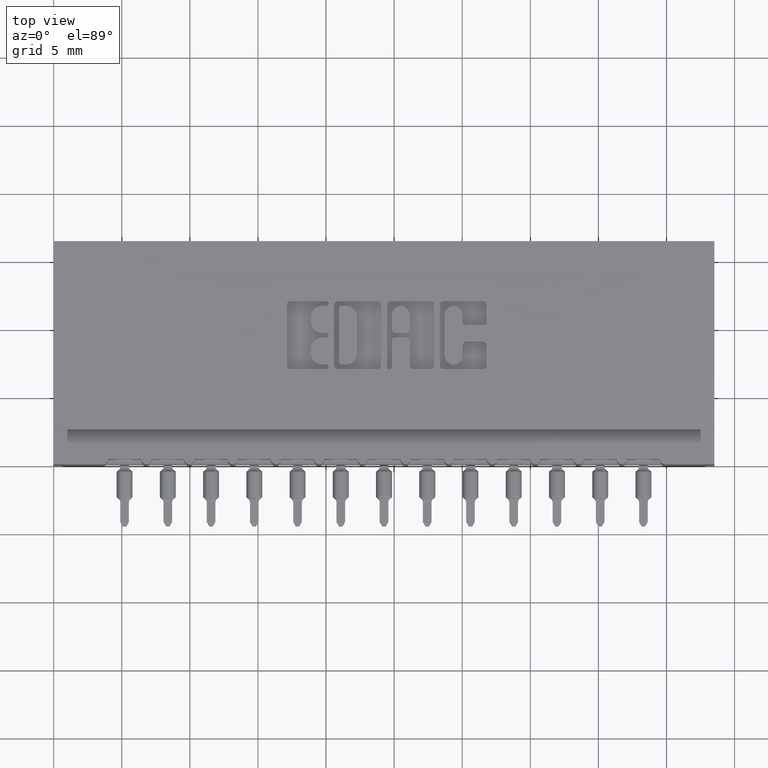
[diagram: clean part render]
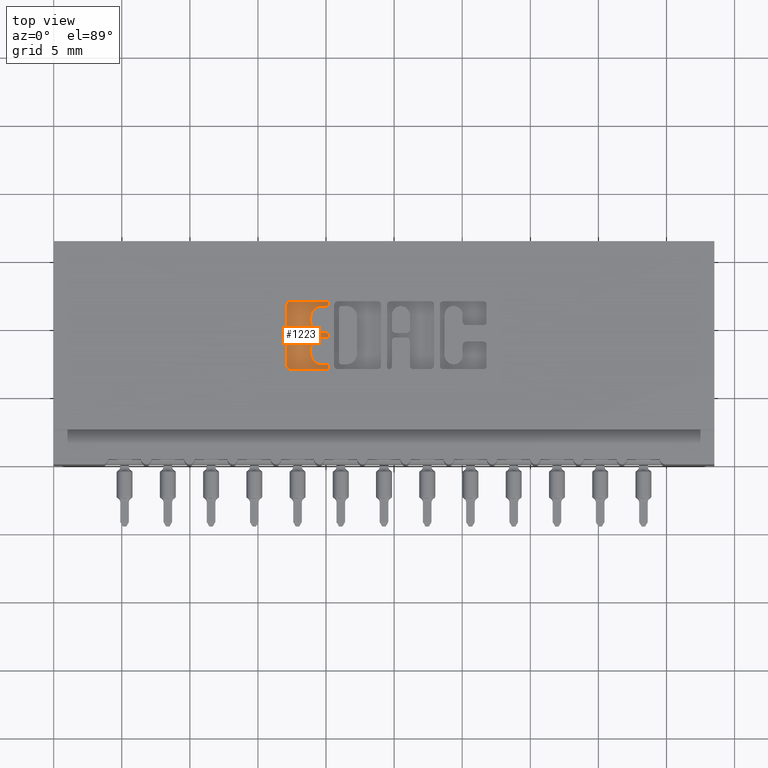
[diagram: same view with one face highlighted and labeled with its STEP entity id]
A machine part, top view. The second image highlights one B-rep face of the part: STEP entity #1223.
In plain terms, the highlighted planar face has unit normal (0, 0, 1).
Its self-contained STEP definition (entity closure, byte-faithful):
#255 = LINE ( 'NONE', #10960, #4354 ) ;
#514 = DIRECTION ( 'NONE',  ( -0.0000000000000000000, 0.0000000000000000000, 1.000000000000000000 ) ) ;
#516 = VECTOR ( 'NONE', #21274, 39.37007874015748143 ) ;
#586 = AXIS2_PLACEMENT_3D ( 'NONE', #17095, #610, #5206 ) ;
#610 = DIRECTION ( 'NONE',  ( -0.0000000000000000000, 0.0000000000000000000, 1.000000000000000000 ) ) ;
#641 = CARTESIAN_POINT ( 'NONE',  ( 0.7746370600050840327, 0.3793709691426839226, -0.01000000000000000021 ) ) ;
#680 = LINE ( 'NONE', #1150, #3152 ) ;
#684 = CARTESIAN_POINT ( 'NONE',  ( 0.7950045756779734463, 0.3725000000000204259, -0.01000000000000000021 ) ) ;
#718 = CIRCLE ( 'NONE', #20325, 0.006870969142648433205 ) ;
#825 = AXIS2_PLACEMENT_3D ( 'NONE', #13758, #514, #22759 ) ;
#960 = CARTESIAN_POINT ( 'NONE',  ( 0.7746370600050840327, 0.3342188862052006271, -0.01000000000000000021 ) ) ;
#1150 = CARTESIAN_POINT ( 'NONE',  ( -1.976217237646392959E-15, 0.2743432979619800927, -0.01000000000000000021 ) ) ;
#1168 = CARTESIAN_POINT ( 'NONE',  ( 0.6740264404161153688, 0.0000000000000000000, -0.01000000000000000021 ) ) ;
#1223 = ADVANCED_FACE ( 'NONE', ( #10359 ), #10124, .T. ) ;
#1246 = AXIS2_PLACEMENT_3D ( 'NONE', #15742, #12583, #4544 ) ;
#1661 = LINE ( 'NONE', #10941, #3144 ) ;
#1692 = CARTESIAN_POINT ( 'NONE',  ( 0.7881336064154143006, 0.2880852362473102501, -0.01000000000000000021 ) ) ;
#1708 = DIRECTION ( 'NONE',  ( 1.000000000000000000, 0.0000000000000000000, 0.0000000000000000000 ) ) ;
#2036 = VERTEX_POINT ( 'NONE', #14473 ) ;
#2300 = VERTEX_POINT ( 'NONE', #19021 ) ;
#2345 = CARTESIAN_POINT ( 'NONE',  ( 0.7950045756779977602, 0.2812142671046480302, -0.01000000000000000021 ) ) ;
#2385 = LINE ( 'NONE', #9753, #23586 ) ;
#2427 = ORIENTED_EDGE ( 'NONE', *, *, #5820, .T. ) ;
#2491 = CIRCLE ( 'NONE', #2866, 0.03141014465215623969 ) ;
#2558 = VERTEX_POINT ( 'NONE', #2345 ) ;
#2614 = DIRECTION ( 'NONE',  ( -0.0000000000000000000, 0.0000000000000000000, 1.000000000000000000 ) ) ;
#2712 = EDGE_CURVE ( 'NONE', #14421, #13162, #680, .T. ) ;
#2732 = VERTEX_POINT ( 'NONE', #6435 ) ;
#2737 = VERTEX_POINT ( 'NONE', #13914 ) ;
#2866 = AXIS2_PLACEMENT_3D ( 'NONE', #960, #4213, #16980 ) ;
#3144 = VECTOR ( 'NONE', #14563, 39.37007874015748143 ) ;
#3152 = VECTOR ( 'NONE', #8493, 39.37007874015748143 ) ;
#3293 = VERTEX_POINT ( 'NONE', #1692 ) ;
#3659 = VERTEX_POINT ( 'NONE', #14208 ) ;
#3762 = AXIS2_PLACEMENT_3D ( 'NONE', #12492, #23309, #10682 ) ;
#4213 = DIRECTION ( 'NONE',  ( -0.0000000000000000000, 0.0000000000000000000, 1.000000000000000000 ) ) ;
#4291 = VERTEX_POINT ( 'NONE', #684 ) ;
#4354 = VECTOR ( 'NONE', #7241, 39.37007874015748143 ) ;
#4372 = ORIENTED_EDGE ( 'NONE', *, *, #22560, .T. ) ;
#4394 = EDGE_CURVE ( 'NONE', #14961, #19279, #718, .T. ) ;
#4534 = ORIENTED_EDGE ( 'NONE', *, *, #22411, .T. ) ;
#4544 = DIRECTION ( 'NONE',  ( 1.000000000000000000, 0.0000000000000000000, 0.0000000000000000000 ) ) ;
#4754 = ORIENTED_EDGE ( 'NONE', *, *, #22782, .T. ) ;
#5018 = CARTESIAN_POINT ( 'NONE',  ( 0.7746370600050840327, 0.3656290308573568737, -0.01000000000000000021 ) ) ;
#5023 = CARTESIAN_POINT ( 'NONE',  ( 0.7881336065353099496, 0.3793709691426839226, -0.01000000000000000021 ) ) ;
#5151 = AXIS2_PLACEMENT_3D ( 'NONE', #16049, #17839, #1708 ) ;
#5162 = AXIS2_PLACEMENT_3D ( 'NONE', #5753, #12870, #20680 ) ;
#5165 = EDGE_LOOP ( 'NONE', ( #15536, #2427, #4534, #10119, #23619, #4754, #9901, #20901, #19324, #17981, #19887, #4372, #16380, #13082, #11380, #11672, #10906, #16100, #5580, #15898, #9233 ) ) ;
#5206 = DIRECTION ( 'NONE',  ( 1.000000000000000000, 0.0000000000000000000, 0.0000000000000000000 ) ) ;
#5580 = ORIENTED_EDGE ( 'NONE', *, *, #21856, .T. ) ;
#5585 = EDGE_CURVE ( 'NONE', #20651, #11803, #13143, .T. ) ;
#5753 = CARTESIAN_POINT ( 'NONE',  ( 0.6838421106199380484, 0.4608410318342101575, -0.01000000000000000021 ) ) ;
#5813 = LINE ( 'NONE', #11354, #7917 ) ;
#5820 = EDGE_CURVE ( 'NONE', #20651, #9327, #255, .T. ) ;
#6341 = CARTESIAN_POINT ( 'NONE',  ( 0.7881336064154143006, 0.2743432979619857548, -0.01000000000000000021 ) ) ;
#6435 = CARTESIAN_POINT ( 'NONE',  ( 0.7746370600051095678, 0.2880852362473086403, -0.01000000000000000021 ) ) ;
#6793 = AXIS2_PLACEMENT_3D ( 'NONE', #13760, #8570, #23223 ) ;
#7035 = CARTESIAN_POINT ( 'NONE',  ( 0.7881336064153887655, 0.3656290308573568737, -0.01000000000000000021 ) ) ;
#7052 = EDGE_CURVE ( 'NONE', #16173, #4291, #22150, .T. ) ;
#7098 = CIRCLE ( 'NONE', #5151, 0.006870969142663458512 ) ;
#7159 = AXIS2_PLACEMENT_3D ( 'NONE', #7356, #18662, #9413 ) ;
#7241 = DIRECTION ( 'NONE',  ( 1.000000000000000000, 0.0000000000000000000, 0.0000000000000000000 ) ) ;
#7256 = CIRCLE ( 'NONE', #11479, 0.009815670203805798924 ) ;
#7356 = CARTESIAN_POINT ( 'NONE',  ( 0.7881336065353099496, 0.3725000000000204259, -0.01000000000000000021 ) ) ;
#7883 = VECTOR ( 'NONE', #21046, 39.37007874015748143 ) ;
#7902 = DIRECTION ( 'NONE',  ( -0.0000000000000000000, 0.0000000000000000000, 1.000000000000000000 ) ) ;
#7908 = CARTESIAN_POINT ( 'NONE',  ( 0.7881336065353513609, 0.4569147637527357642, -0.01000000000000000021 ) ) ;
#7917 = VECTOR ( 'NONE', #9324, 39.37007874015748143 ) ;
#8058 = LINE ( 'NONE', #22732, #7883 ) ;
#8154 = CARTESIAN_POINT ( 'NONE',  ( 0.6838421106199186195, 0.2743432979619850332, -0.01000000000000000021 ) ) ;
#8493 = DIRECTION ( 'NONE',  ( 1.000000000000000000, 7.203446383881654569E-15, 0.0000000000000000000 ) ) ;
#8570 = DIRECTION ( 'NONE',  ( -0.0000000000000000000, 0.0000000000000000000, 1.000000000000000000 ) ) ;
#9011 = EDGE_CURVE ( 'NONE', #2737, #12656, #12203, .T. ) ;
#9218 = EDGE_CURVE ( 'NONE', #13162, #2558, #9927, .T. ) ;
#9233 = ORIENTED_EDGE ( 'NONE', *, *, #21415, .T. ) ;
#9324 = DIRECTION ( 'NONE',  ( 1.000000000000000000, 0.0000000000000000000, 0.0000000000000000000 ) ) ;
#9327 = VERTEX_POINT ( 'NONE', #7908 ) ;
#9413 = DIRECTION ( 'NONE',  ( 1.000000000000000000, 0.0000000000000000000, 0.0000000000000000000 ) ) ;
#9620 = VERTEX_POINT ( 'NONE', #12458 ) ;
#9753 = CARTESIAN_POINT ( 'NONE',  ( 0.7432269153529094119, 0.0000000000000000000, -0.01000000000000000021 ) ) ;
#9901 = ORIENTED_EDGE ( 'NONE', *, *, #21866, .T. ) ;
#9927 = CIRCLE ( 'NONE', #3762, 0.006870969142662229460 ) ;
#10119 = ORIENTED_EDGE ( 'NONE', *, *, #4394, .T. ) ;
#10124 = PLANE ( 'NONE',  #6793 ) ;
#10359 = FACE_OUTER_BOUND ( 'NONE', #5165, .T. ) ;
#10623 = CARTESIAN_POINT ( 'NONE',  ( 0.7746370600051254440, 0.4569147637527357642, -0.01000000000000000021 ) ) ;
#10659 = LINE ( 'NONE', #12466, #15173 ) ;
#10682 = DIRECTION ( 'NONE',  ( 1.000000000000000000, 0.0000000000000000000, 0.0000000000000000000 ) ) ;
#10778 = DIRECTION ( 'NONE',  ( -1.000000000000000000, 0.0000000000000000000, 0.0000000000000000000 ) ) ;
#10906 = ORIENTED_EDGE ( 'NONE', *, *, #7052, .T. ) ;
#10941 = CARTESIAN_POINT ( 'NONE',  ( 0.7432269153529277306, 0.0000000000000000000, -0.01000000000000000021 ) ) ;
#10960 = CARTESIAN_POINT ( 'NONE',  ( 0.0000000000000000000, 0.4569147637527357642, -0.01000000000000000021 ) ) ;
#11265 = EDGE_CURVE ( 'NONE', #4291, #22696, #7098, .T. ) ;
#11354 = CARTESIAN_POINT ( 'NONE',  ( 0.0000000000000000000, 0.3656290308573568737, -0.01000000000000000021 ) ) ;
#11380 = ORIENTED_EDGE ( 'NONE', *, *, #11846, .F. ) ;
#11479 = AXIS2_PLACEMENT_3D ( 'NONE', #22606, #12877, #20216 ) ;
#11629 = CIRCLE ( 'NONE', #1246, 0.03141014465218178175 ) ;
#11672 = ORIENTED_EDGE ( 'NONE', *, *, #23551, .T. ) ;
#11803 = VERTEX_POINT ( 'NONE', #13138 ) ;
#11846 = EDGE_CURVE ( 'NONE', #21517, #9620, #2491, .T. ) ;
#11895 = LINE ( 'NONE', #21035, #516 ) ;
#12116 = LINE ( 'NONE', #1168, #18225 ) ;
#12203 = CIRCLE ( 'NONE', #23349, 0.03141014465217454449 ) ;
#12458 = CARTESIAN_POINT ( 'NONE',  ( 0.7432269153529277306, 0.3342188862052006271, -0.01000000000000000021 ) ) ;
#12466 = CARTESIAN_POINT ( 'NONE',  ( 0.0000000000000000000, 0.3793709691426839226, -0.01000000000000000021 ) ) ;
#12492 = CARTESIAN_POINT ( 'NONE',  ( 0.7881336065353354847, 0.2812142671046480302, -0.01000000000000000021 ) ) ;
#12583 = DIRECTION ( 'NONE',  ( -0.0000000000000000000, 0.0000000000000000000, 1.000000000000000000 ) ) ;
#12656 = VERTEX_POINT ( 'NONE', #641 ) ;
#12870 = DIRECTION ( 'NONE',  ( -0.0000000000000000000, 0.0000000000000000000, 1.000000000000000000 ) ) ;
#12877 = DIRECTION ( 'NONE',  ( -0.0000000000000000000, 0.0000000000000000000, 1.000000000000000000 ) ) ;
#13082 = ORIENTED_EDGE ( 'NONE', *, *, #17728, .T. ) ;
#13138 = CARTESIAN_POINT ( 'NONE',  ( 0.7432269153529094119, 0.4255046191005198430, -0.01000000000000000021 ) ) ;
#13143 = CIRCLE ( 'NONE', #825, 0.03141014465221592805 ) ;
#13162 = VERTEX_POINT ( 'NONE', #6341 ) ;
#13758 = CARTESIAN_POINT ( 'NONE',  ( 0.7746370600051254440, 0.4255046191005198430, -0.01000000000000000021 ) ) ;
#13760 = CARTESIAN_POINT ( 'NONE',  ( 0.0000000000000000000, 0.0000000000000000000, -0.01000000000000000021 ) ) ;
#13914 = CARTESIAN_POINT ( 'NONE',  ( 0.7432269153529094119, 0.4107811137948584324, -0.01000000000000000021 ) ) ;
#14024 = CARTESIAN_POINT ( 'NONE',  ( 0.7950045756779996475, 0.4637857328953863267, -0.01000000000000000021 ) ) ;
#14058 = CARTESIAN_POINT ( 'NONE',  ( 0.7881336065353511389, 0.4706567020380327815, -0.01000000000000000021 ) ) ;
#14208 = CARTESIAN_POINT ( 'NONE',  ( 0.6740264404161153688, 0.2841589681657900046, -0.01000000000000000021 ) ) ;
#14266 = EDGE_CURVE ( 'NONE', #3659, #14421, #7256, .T. ) ;
#14276 = DIRECTION ( 'NONE',  ( 0.0000000000000000000, -1.000000000000000000, 0.0000000000000000000 ) ) ;
#14421 = VERTEX_POINT ( 'NONE', #8154 ) ;
#14473 = CARTESIAN_POINT ( 'NONE',  ( 0.7432269153529277306, 0.3194953808994904221, -0.01000000000000000021 ) ) ;
#14563 = DIRECTION ( 'NONE',  ( 0.0000000000000000000, 1.000000000000000000, -0.0000000000000000000 ) ) ;
#14961 = VERTEX_POINT ( 'NONE', #14024 ) ;
#15173 = VECTOR ( 'NONE', #10778, 39.37007874015748143 ) ;
#15507 = CARTESIAN_POINT ( 'NONE',  ( 0.7746370600050840327, 0.4107811137948584324, -0.01000000000000000021 ) ) ;
#15536 = ORIENTED_EDGE ( 'NONE', *, *, #5585, .F. ) ;
#15556 = CIRCLE ( 'NONE', #5162, 0.009815670203822599721 ) ;
#15742 = CARTESIAN_POINT ( 'NONE',  ( 0.7746370600051095678, 0.3194953808994904221, -0.01000000000000000021 ) ) ;
#15898 = ORIENTED_EDGE ( 'NONE', *, *, #9011, .F. ) ;
#16049 = CARTESIAN_POINT ( 'NONE',  ( 0.7881336065353099496, 0.3725000000000204259, -0.01000000000000000021 ) ) ;
#16100 = ORIENTED_EDGE ( 'NONE', *, *, #11265, .T. ) ;
#16173 = VERTEX_POINT ( 'NONE', #7035 ) ;
#16380 = ORIENTED_EDGE ( 'NONE', *, *, #17978, .F. ) ;
#16980 = DIRECTION ( 'NONE',  ( 1.000000000000000000, 0.0000000000000000000, 0.0000000000000000000 ) ) ;
#17051 = CARTESIAN_POINT ( 'NONE',  ( 0.7881336065353511389, 0.4637857328953863267, -0.01000000000000000021 ) ) ;
#17095 = CARTESIAN_POINT ( 'NONE',  ( 0.7881336065353511389, 0.4637857328953863267, -0.01000000000000000021 ) ) ;
#17169 = DIRECTION ( 'NONE',  ( 1.000000000000000000, 0.0000000000000000000, 0.0000000000000000000 ) ) ;
#17551 = DIRECTION ( 'NONE',  ( 1.000000000000000000, 0.0000000000000000000, 0.0000000000000000000 ) ) ;
#17728 = EDGE_CURVE ( 'NONE', #2036, #9620, #1661, .T. ) ;
#17839 = DIRECTION ( 'NONE',  ( -0.0000000000000000000, 0.0000000000000000000, 1.000000000000000000 ) ) ;
#17851 = VERTEX_POINT ( 'NONE', #20792 ) ;
#17978 = EDGE_CURVE ( 'NONE', #2036, #2732, #11629, .T. ) ;
#17981 = ORIENTED_EDGE ( 'NONE', *, *, #9218, .T. ) ;
#18225 = VECTOR ( 'NONE', #14276, 39.37007874015748143 ) ;
#18662 = DIRECTION ( 'NONE',  ( -0.0000000000000000000, 0.0000000000000000000, 1.000000000000000000 ) ) ;
#19010 = CIRCLE ( 'NONE', #20186, 0.006870969142662229460 ) ;
#19021 = CARTESIAN_POINT ( 'NONE',  ( 0.6838421106199380484, 0.4706567020380327815, -0.01000000000000000021 ) ) ;
#19279 = VERTEX_POINT ( 'NONE', #14058 ) ;
#19324 = ORIENTED_EDGE ( 'NONE', *, *, #2712, .T. ) ;
#19839 = DIRECTION ( 'NONE',  ( -0.0000000000000000000, 0.0000000000000000000, 1.000000000000000000 ) ) ;
#19887 = ORIENTED_EDGE ( 'NONE', *, *, #22620, .T. ) ;
#20186 = AXIS2_PLACEMENT_3D ( 'NONE', #21637, #19839, #23436 ) ;
#20216 = DIRECTION ( 'NONE',  ( 1.000000000000000000, 0.0000000000000000000, 0.0000000000000000000 ) ) ;
#20325 = AXIS2_PLACEMENT_3D ( 'NONE', #17051, #7902, #17169 ) ;
#20348 = EDGE_CURVE ( 'NONE', #19279, #2300, #11895, .T. ) ;
#20651 = VERTEX_POINT ( 'NONE', #10623 ) ;
#20680 = DIRECTION ( 'NONE',  ( 1.000000000000000000, 0.0000000000000000000, 0.0000000000000000000 ) ) ;
#20792 = CARTESIAN_POINT ( 'NONE',  ( 0.6740264404161153688, 0.4608410318342101575, -0.01000000000000000021 ) ) ;
#20901 = ORIENTED_EDGE ( 'NONE', *, *, #14266, .T. ) ;
#21035 = CARTESIAN_POINT ( 'NONE',  ( 0.0000000000000000000, 0.4706567020380327815, -0.01000000000000000021 ) ) ;
#21046 = DIRECTION ( 'NONE',  ( -1.000000000000000000, -1.189163988687022540E-13, 0.0000000000000000000 ) ) ;
#21164 = DIRECTION ( 'NONE',  ( 0.0000000000000000000, 1.000000000000000000, -0.0000000000000000000 ) ) ;
#21274 = DIRECTION ( 'NONE',  ( -1.000000000000000000, 0.0000000000000000000, 0.0000000000000000000 ) ) ;
#21415 = EDGE_CURVE ( 'NONE', #2737, #11803, #2385, .T. ) ;
#21517 = VERTEX_POINT ( 'NONE', #5018 ) ;
#21637 = CARTESIAN_POINT ( 'NONE',  ( 0.7881336065353354847, 0.2812142671046480302, -0.01000000000000000021 ) ) ;
#21856 = EDGE_CURVE ( 'NONE', #22696, #12656, #10659, .T. ) ;
#21866 = EDGE_CURVE ( 'NONE', #17851, #3659, #12116, .T. ) ;
#22150 = CIRCLE ( 'NONE', #7159, 0.006870969142663458512 ) ;
#22411 = EDGE_CURVE ( 'NONE', #9327, #14961, #23232, .T. ) ;
#22560 = EDGE_CURVE ( 'NONE', #3293, #2732, #8058, .T. ) ;
#22606 = CARTESIAN_POINT ( 'NONE',  ( 0.6838421106199221722, 0.2841589681657900046, -0.01000000000000000021 ) ) ;
#22620 = EDGE_CURVE ( 'NONE', #2558, #3293, #19010, .T. ) ;
#22696 = VERTEX_POINT ( 'NONE', #5023 ) ;
#22732 = CARTESIAN_POINT ( 'NONE',  ( -3.425805886175832341E-14, 0.2880852362472165473, -0.01000000000000000021 ) ) ;
#22759 = DIRECTION ( 'NONE',  ( 1.000000000000000000, 0.0000000000000000000, 0.0000000000000000000 ) ) ;
#22782 = EDGE_CURVE ( 'NONE', #2300, #17851, #15556, .T. ) ;
#23223 = DIRECTION ( 'NONE',  ( 1.000000000000000000, 0.0000000000000000000, 0.0000000000000000000 ) ) ;
#23232 = CIRCLE ( 'NONE', #586, 0.006870969142648433205 ) ;
#23309 = DIRECTION ( 'NONE',  ( -0.0000000000000000000, 0.0000000000000000000, 1.000000000000000000 ) ) ;
#23349 = AXIS2_PLACEMENT_3D ( 'NONE', #15507, #2614, #17551 ) ;
#23436 = DIRECTION ( 'NONE',  ( 1.000000000000000000, 0.0000000000000000000, 0.0000000000000000000 ) ) ;
#23551 = EDGE_CURVE ( 'NONE', #21517, #16173, #5813, .T. ) ;
#23586 = VECTOR ( 'NONE', #21164, 39.37007874015748143 ) ;
#23619 = ORIENTED_EDGE ( 'NONE', *, *, #20348, .T. ) ;